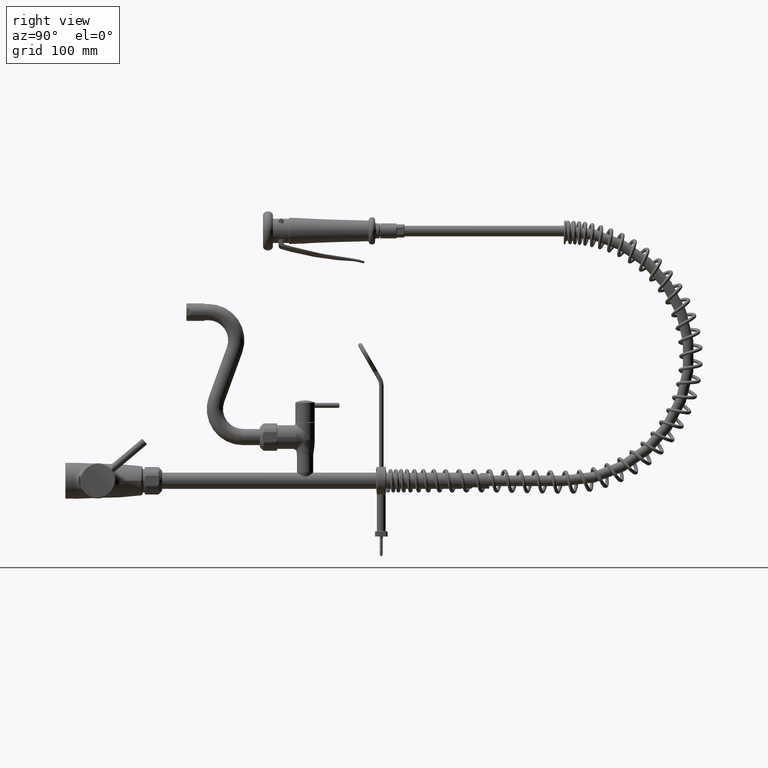
[diagram: clean part render]
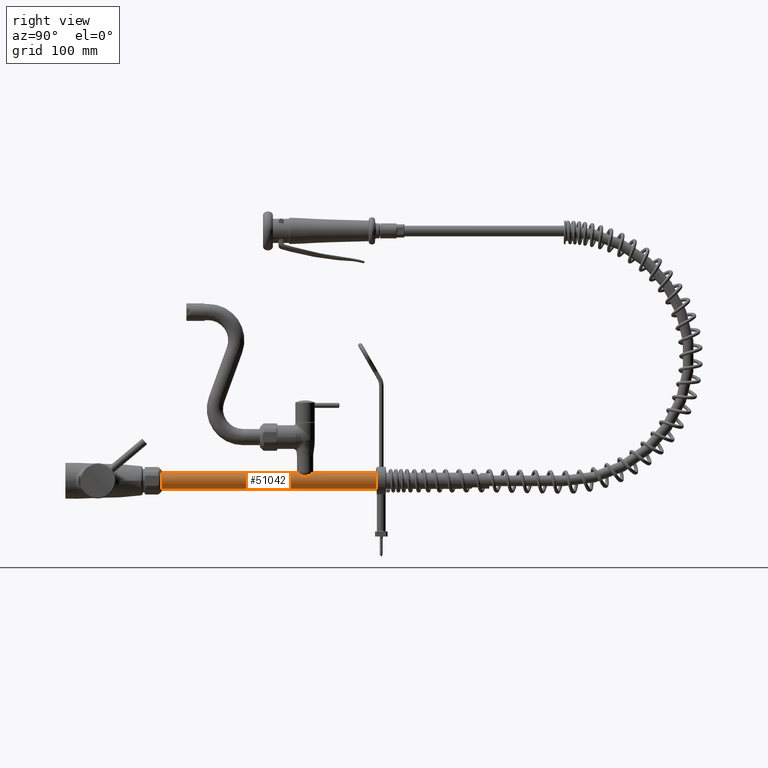
[diagram: same view with one face highlighted and labeled with its STEP entity id]
A machine part, right view. The second image highlights one B-rep face of the part: STEP entity #51042.
In plain terms, the highlighted cylindrical surface (edge-blend (fillet) strip) has radius 13 mm, axis along (0, 1, 0).
Its self-contained STEP definition (entity closure, byte-faithful):
#1408=CARTESIAN_POINT('',(0.E0,1.55E2,0.E0));
#1409=DIRECTION('',(0.E0,1.E0,0.E0));
#1410=DIRECTION('',(0.E0,0.E0,1.E0));
#1411=AXIS2_PLACEMENT_3D('',#1408,#1409,#1410);
#1432=CARTESIAN_POINT('',(2.424720580568E-14,4.98E2,0.E0));
#1433=DIRECTION('',(0.E0,1.E0,0.E0));
#1434=DIRECTION('',(0.E0,0.E0,1.E0));
#1435=AXIS2_PLACEMENT_3D('',#1432,#1433,#1434);
#1440=CARTESIAN_POINT('',(2.362573127145E-14,3.710884572681E2,1.3E1));
#1441=CARTESIAN_POINT('',(1.068034800838E-1,3.710884572681E2,1.3E1));
#1442=CARTESIAN_POINT('',(3.206292205690E-1,3.710918126549E2,1.299736773635E1));
#1443=CARTESIAN_POINT('',(6.418769421852E-1,3.711069791375E2,1.298547296016E1));
#1444=CARTESIAN_POINT('',(9.632897091357E-1,3.711323369964E2,1.296559593528E1));
#1445=CARTESIAN_POINT('',(1.284658023592E0,3.711679347192E2,1.293771483710E1));
#1446=CARTESIAN_POINT('',(1.606586263421E0,3.712139602680E2,1.290170562847E1));
#1447=CARTESIAN_POINT('',(1.928644625565E0,3.712705254291E2,1.285751166689E1));
#1448=CARTESIAN_POINT('',(2.250292932241E0,3.713376602046E2,1.280514786690E1));
#1449=CARTESIAN_POINT('',(2.572983170973E0,3.714158887548E2,1.274425301900E1));
#1450=CARTESIAN_POINT('',(2.896326315006E0,3.715054524818E2,1.267469792003E1));
#1451=CARTESIAN_POINT('',(3.219709419823E0,3.716064789897E2,1.259645287088E1));
#1452=CARTESIAN_POINT('',(3.543404665577E0,3.717193827345E2,1.250927890456E1));
#1453=CARTESIAN_POINT('',(3.867402045508E0,3.718445708354E2,1.241295944149E1));
#1454=CARTESIAN_POINT('',(4.191154156182E0,3.719822562117E2,1.230744470714E1));
#1455=CARTESIAN_POINT('',(4.514911347478E0,3.721330118908E2,1.219242889767E1));
#1456=CARTESIAN_POINT('',(4.838669995514E0,3.722974128261E2,1.206763199768E1));
#1457=CARTESIAN_POINT('',(5.161631599123E0,3.724756495527E2,1.193309338553E1));
#1458=CARTESIAN_POINT('',(5.483775687021E0,3.726683397905E2,1.178856036545E1));
#1459=CARTESIAN_POINT('',(5.804843041548E0,3.728760614102E2,1.163385154920E1));
#1460=CARTESIAN_POINT('',(6.124214591111E0,3.730991962616E2,1.146897595469E1));
#1461=CARTESIAN_POINT('',(6.441442838457E0,3.733382677231E2,1.129388807503E1));
#1462=CARTESIAN_POINT('',(6.755856326562E0,3.735936769859E2,1.110869214930E1));
#1463=CARTESIAN_POINT('',(7.066637084080E0,3.738656950343E2,1.091365033982E1));
#1464=CARTESIAN_POINT('',(7.373330397667E0,3.741549455887E2,1.070885055799E1));
#1465=CARTESIAN_POINT('',(7.674825879571E0,3.744614633802E2,1.049488749600E1));
#1466=CARTESIAN_POINT('',(7.970187208164E0,3.747853930251E2,1.027236996580E1));
#1467=CARTESIAN_POINT('',(8.257980653594E0,3.751262359516E2,1.004244436493E1));
#1468=CARTESIAN_POINT('',(8.536838440062E0,3.754833440805E2,9.806442641276E0));
#1469=CARTESIAN_POINT('',(8.805101710732E0,3.758553751320E2,9.566224235571E0));
#1470=CARTESIAN_POINT('',(9.061707361906E0,3.762414236116E2,9.323418378264E0));
#1471=CARTESIAN_POINT('',(9.305528384884E0,3.766402297370E2,9.079950231189E0));
#1472=CARTESIAN_POINT('',(9.535159405281E0,3.770495408341E2,8.838350401951E0));
#1473=CARTESIAN_POINT('',(9.749877403948E0,3.774678150642E2,8.600718514377E0));
#1474=CARTESIAN_POINT('',(9.947443975957E0,3.778896181988E2,8.371200976693E0));
#1475=CARTESIAN_POINT('',(1.012735386845E1,3.783116176032E2,8.152394082543E0));
#1476=CARTESIAN_POINT('',(1.028977663094E1,3.787313621947E2,7.946170328135E0));
#1477=CARTESIAN_POINT('',(1.043516203882E1,3.791466705765E2,7.754027805400E0));
#1478=CARTESIAN_POINT('',(1.056374417418E1,3.795540947948E2,7.577701391361E0));
#1479=CARTESIAN_POINT('',(1.067671484975E1,3.799526290750E2,7.417491401545E0));
#1480=CARTESIAN_POINT('',(1.077543263562E1,3.803422706889E2,7.273173582339E0));
#1481=CARTESIAN_POINT('',(1.086107985739E1,3.807228553745E2,7.144502167464E0));
#1482=CARTESIAN_POINT('',(1.093481562754E1,3.810946665072E2,7.031008792301E0));
#1483=CARTESIAN_POINT('',(1.099765460374E1,3.814579251039E2,6.932206653862E0));
#1484=CARTESIAN_POINT('',(1.105057480132E1,3.818134049755E2,6.847450697459E0));
#1485=CARTESIAN_POINT('',(1.109438601191E1,3.821616860038E2,6.776171875047E0));
#1486=CARTESIAN_POINT('',(1.112985972176E1,3.825041410015E2,6.717696921003E0));
#1487=CARTESIAN_POINT('',(1.115756764729E1,3.828418473796E2,6.671536660861E0));
#1488=CARTESIAN_POINT('',(1.117793648076E1,3.831753840185E2,6.637325426868E0));
#1489=CARTESIAN_POINT('',(1.119134346730E1,3.835064049294E2,6.614676912391E0));
#1490=CARTESIAN_POINT('',(1.119798751010E1,3.838358060107E2,6.603414295864E0));
#1491=CARTESIAN_POINT('',(1.119798594897E1,3.841643448803E2,6.603416944999E0));
#1492=CARTESIAN_POINT('',(1.119133906329E1,3.844937406190E2,6.614684369412E0));
#1493=CARTESIAN_POINT('',(1.117792875423E1,3.848247688780E2,6.637338450266E0));
#1494=CARTESIAN_POINT('',(1.115755677457E1,3.851583040214E2,6.671554856146E0));
#1495=CARTESIAN_POINT('',(1.112984589146E1,3.854960086768E2,6.717719858539E0));
#1496=CARTESIAN_POINT('',(1.109436747588E1,3.858384759458E2,6.776202250404E0));
#1497=CARTESIAN_POINT('',(1.105055317362E1,3.861867523558E2,6.847485626654E0));
#1498=CARTESIAN_POINT('',(1.099762881702E1,3.865422354714E2,6.932247604950E0));
#1499=CARTESIAN_POINT('',(1.093478474118E1,3.869055002999E2,7.031056886782E0));
#1500=CARTESIAN_POINT('',(1.086104289343E1,3.872773194808E2,7.144558420859E0));
#1501=CARTESIAN_POINT('',(1.077539162472E1,3.876579004286E2,7.273234361982E0));
#1502=CARTESIAN_POINT('',(1.067667228810E1,3.880475291456E2,7.417552680489E0));
#1503=CARTESIAN_POINT('',(1.056370097742E1,3.884460485838E2,7.577761542248E0));
#1504=CARTESIAN_POINT('',(1.043512321392E1,3.888534457429E2,7.754080040371E0));
#1505=CARTESIAN_POINT('',(1.028973124643E1,3.892687615428E2,7.946229244298E0));
#1506=CARTESIAN_POINT('',(1.012730021253E1,3.896885144877E2,8.152460814908E0));
#1507=CARTESIAN_POINT('',(9.947388582982E0,3.901105052194E2,8.371266723768E0));
#1508=CARTESIAN_POINT('',(9.749822290453E0,3.905322975986E2,8.600781133757E0));
#1509=CARTESIAN_POINT('',(9.535089686033E0,3.909505892434E2,8.838425736272E0));
#1510=CARTESIAN_POINT('',(9.305463226424E0,3.913598806478E2,9.080016744376E0));
#1511=CARTESIAN_POINT('',(9.061655197015E0,3.917586576834E2,9.323468896456E0));
#1512=CARTESIAN_POINT('',(8.805053240941E0,3.921446947590E2,9.566268818969E0));
#1513=CARTESIAN_POINT('',(8.536787498211E0,3.925167239994E2,9.806487096733E0));
#1514=CARTESIAN_POINT('',(8.257917282402E0,3.928738424434E2,1.004249666879E1));
#1515=CARTESIAN_POINT('',(7.970114932943E0,3.932146892952E2,1.027242603314E1));
#1516=CARTESIAN_POINT('',(7.674757953118E0,3.935386081779E2,1.049493708935E1));
#1517=CARTESIAN_POINT('',(7.373262383067E0,3.938451210337E2,1.070889740502E1));
#1518=CARTESIAN_POINT('',(7.066565194332E0,3.941343703806E2,1.091369695021E1));
#1519=CARTESIAN_POINT('',(6.755778187851E0,3.944063889586E2,1.110873970411E1));
#1520=CARTESIAN_POINT('',(6.441363888523E0,3.946617940125E2,1.129393307734E1));
#1521=CARTESIAN_POINT('',(6.124136172336E0,3.949008606317E2,1.146901781685E1));
#1522=CARTESIAN_POINT('',(5.804764530269E0,3.951239913477E2,1.163389069668E1));
#1523=CARTESIAN_POINT('',(5.483697795100E0,3.953317087153E2,1.178859662356E1));
#1524=CARTESIAN_POINT('',(5.161548500524E0,3.955243982248E2,1.193312933982E1));
#1525=CARTESIAN_POINT('',(4.838590163663E0,3.957026293654E2,1.206766394388E1));
#1526=CARTESIAN_POINT('',(4.514833936802E0,3.958670257874E2,1.219245757396E1));
#1527=CARTESIAN_POINT('',(4.191074580080E0,3.960177791738E2,1.230747176890E1));
#1528=CARTESIAN_POINT('',(3.867331194180E0,3.961554577798E2,1.241298142065E1));
#1529=CARTESIAN_POINT('',(3.543338487080E0,3.962806415838E2,1.250929764967E1));
#1530=CARTESIAN_POINT('',(3.219642116028E0,3.963935432136E2,1.259647004320E1));
#1531=CARTESIAN_POINT('',(2.896267346394E0,3.964945647647E2,1.267471129884E1));
#1532=CARTESIAN_POINT('',(2.572930970086E0,3.965841247866E2,1.274426354857E1));
#1533=CARTESIAN_POINT('',(2.250239473817E0,3.966623518149E2,1.280515723359E1));
#1534=CARTESIAN_POINT('',(1.928601753194E0,3.967294826371E2,1.285751796545E1));
#1535=CARTESIAN_POINT('',(1.606558016189E0,3.967860441064E2,1.290170904943E1));
#1536=CARTESIAN_POINT('',(1.284636284985E0,3.968320680088E2,1.293771697279E1));
#1537=CARTESIAN_POINT('',(9.632714063415E-1,3.968676646559E2,1.296559723017E1));
#1538=CARTESIAN_POINT('',(6.418696447426E-1,3.968930212219E2,1.298547324208E1));
#1539=CARTESIAN_POINT('',(3.206272811807E-1,3.969081873722E2,1.299736775753E1));
#1540=CARTESIAN_POINT('',(1.068032511991E-1,3.969115427319E2,1.3E1));
#1541=CARTESIAN_POINT('',(2.383610362582E-14,3.969115427319E2,1.3E1));
#42761=DIRECTION('',(0.E0,-1.E0,0.E0));
#42762=VECTOR('',#42761,1.010884572681E2);
#42763=CARTESIAN_POINT('',(3.353677542233E-14,4.98E2,1.3E1));
#42764=LINE('',#42763,#42762);
#42874=DIRECTION('',(0.E0,-1.E0,0.E0));
#42875=VECTOR('',#42874,2.160884572681E2);
#42876=CARTESIAN_POINT('',(2.362573127145E-14,3.710884572681E2,1.3E1));
#42877=LINE('',#42876,#42875);
#42881=DIRECTION('',(0.E0,-1.E0,0.E0));
#42882=VECTOR('',#42881,3.43E2);
#42883=CARTESIAN_POINT('',(2.902562632584E-14,4.98E2,-1.3E1));
#42884=LINE('',#42883,#42882);
#49030=CARTESIAN_POINT('',(1.061035482565E-14,1.55E2,1.3E1));
#49031=CARTESIAN_POINT('',(0.E0,1.55E2,-1.3E1));
#49032=VERTEX_POINT('',#49030);
#49033=VERTEX_POINT('',#49031);
#49080=VERTEX_POINT('',#1440);
#49081=VERTEX_POINT('',#1541);
#49174=CARTESIAN_POINT('',(2.583919406565E-14,4.98E2,1.3E1));
#49175=CARTESIAN_POINT('',(2.424725838461E-14,4.98E2,-1.3E1));
#49176=VERTEX_POINT('',#49174);
#49177=VERTEX_POINT('',#49175);
#51024=CARTESIAN_POINT('',(0.E0,1.0375E2,0.E0));
#51025=DIRECTION('',(0.E0,1.E0,0.E0));
#51026=DIRECTION('',(0.E0,0.E0,-1.E0));
#51027=AXIS2_PLACEMENT_3D('',#51024,#51025,#51026);
#51028=CYLINDRICAL_SURFACE('',#51027,1.3E1);
#51030=ORIENTED_EDGE('',*,*,#51029,.T.);
#51032=ORIENTED_EDGE('',*,*,#51031,.T.);
#51033=ORIENTED_EDGE('',*,*,#50991,.F.);
#51035=ORIENTED_EDGE('',*,*,#51034,.F.);
#51037=ORIENTED_EDGE('',*,*,#51036,.T.);
#51039=ORIENTED_EDGE('',*,*,#51038,.F.);
#51040=EDGE_LOOP('',(#51030,#51032,#51033,#51035,#51037,#51039));
#51041=FACE_OUTER_BOUND('',#51040,.F.);
#1412=CIRCLE('',#1411,1.3E1);
#1436=CIRCLE('',#1435,1.3E1);
#1542=B_SPLINE_CURVE_WITH_KNOTS('',3,(#1440,#1441,#1442,#1443,#1444,#1445,#1446,
#1447,#1448,#1449,#1450,#1451,#1452,#1453,#1454,#1455,#1456,#1457,#1458,#1459,
#1460,#1461,#1462,#1463,#1464,#1465,#1466,#1467,#1468,#1469,#1470,#1471,#1472,
#1473,#1474,#1475,#1476,#1477,#1478,#1479,#1480,#1481,#1482,#1483,#1484,#1485,
#1486,#1487,#1488,#1489,#1490,#1491,#1492,#1493,#1494,#1495,#1496,#1497,#1498,
#1499,#1500,#1501,#1502,#1503,#1504,#1505,#1506,#1507,#1508,#1509,#1510,#1511,
#1512,#1513,#1514,#1515,#1516,#1517,#1518,#1519,#1520,#1521,#1522,#1523,#1524,
#1525,#1526,#1527,#1528,#1529,#1530,#1531,#1532,#1533,#1534,#1535,#1536,#1537,
#1538,#1539,#1540,#1541),.UNSPECIFIED.,.F.,.F.,(4,1,1,1,1,1,1,1,1,1,1,1,1,1,1,1,
1,1,1,1,1,1,1,1,1,1,1,1,1,1,1,1,1,1,1,1,1,1,1,1,1,1,1,1,1,1,1,1,1,1,1,1,1,1,1,1,
1,1,1,1,1,1,1,1,1,1,1,1,1,1,1,1,1,1,1,1,1,1,1,1,1,1,1,1,1,1,1,1,1,1,1,1,1,1,1,1,
1,1,1,4),(0.E0,1.010101010101E-2,2.020202020202E-2,3.030303030303E-2,
4.040404040404E-2,5.050505050505E-2,6.060606060606E-2,7.070707070707E-2,
8.080808080808E-2,9.090909090909E-2,1.010101010101E-1,1.111111111111E-1,
1.212121212121E-1,1.313131313131E-1,1.414141414141E-1,1.515151515152E-1,
1.616161616162E-1,1.717171717172E-1,1.818181818182E-1,1.919191919192E-1,
2.020202020202E-1,2.121212121212E-1,2.222222222222E-1,2.323232323232E-1,
2.424242424242E-1,2.525252525253E-1,2.626262626263E-1,2.727272727273E-1,
2.828282828283E-1,2.929292929293E-1,3.030303030303E-1,3.131313131313E-1,
3.232323232323E-1,3.333333333333E-1,3.434343434343E-1,3.535353535354E-1,
3.636363636364E-1,3.737373737374E-1,3.838383838384E-1,3.939393939394E-1,
4.040404040404E-1,4.141414141414E-1,4.242424242424E-1,4.343434343434E-1,
4.444444444444E-1,4.545454545455E-1,4.646464646465E-1,4.747474747475E-1,
4.848484848485E-1,4.949494949495E-1,5.050505050505E-1,5.151515151515E-1,
5.252525252525E-1,5.353535353535E-1,5.454545454545E-1,5.555555555556E-1,
5.656565656566E-1,5.757575757576E-1,5.858585858586E-1,5.959595959596E-1,
6.060606060606E-1,6.161616161616E-1,6.262626262626E-1,6.363636363636E-1,
6.464646464646E-1,6.565656565657E-1,6.666666666667E-1,6.767676767677E-1,
6.868686868687E-1,6.969696969697E-1,7.070707070707E-1,7.171717171717E-1,
7.272727272727E-1,7.373737373737E-1,7.474747474747E-1,7.575757575758E-1,
7.676767676768E-1,7.777777777778E-1,7.878787878788E-1,7.979797979798E-1,
8.080808080808E-1,8.181818181818E-1,8.282828282828E-1,8.383838383838E-1,
8.484848484848E-1,8.585858585859E-1,8.686868686869E-1,8.787878787879E-1,
8.888888888889E-1,8.989898989899E-1,9.090909090909E-1,9.191919191919E-1,
9.292929292929E-1,9.393939393939E-1,9.494949494949E-1,9.595959595960E-1,
9.696969696970E-1,9.797979797980E-1,9.898989898990E-1,1.E0),.UNSPECIFIED.);
#50991=EDGE_CURVE('',#49032,#49033,#1412,.T.);
#51029=EDGE_CURVE('',#49176,#49177,#1436,.T.);
#51031=EDGE_CURVE('',#49177,#49033,#42884,.T.);
#51034=EDGE_CURVE('',#49080,#49032,#42877,.T.);
#51036=EDGE_CURVE('',#49080,#49081,#1542,.T.);
#51038=EDGE_CURVE('',#49176,#49081,#42764,.T.);
#51042=ADVANCED_FACE('',(#51041),#51028,.T.);